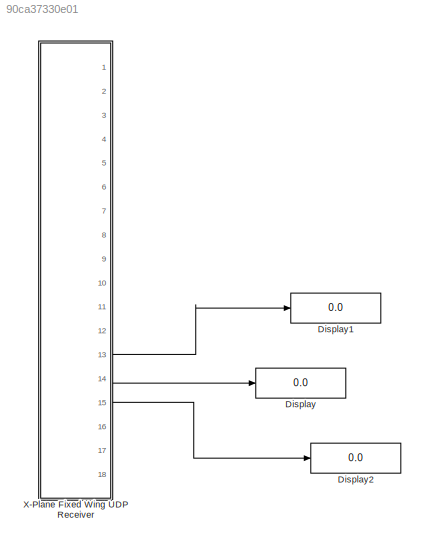
MODEL slx_90ca37330e01
KIND model
CONFIG AbsTol = auto
CONFIG EnableMultiTasking = off
CONFIG FixedStep = auto
CONFIG MaxStep = auto
CONFIG MinStep = auto
CONFIG RelTol = 1e-3
CONFIG SampleTimeConstraint = Unconstrained
CONFIG Solver = VariableStepAuto
CONFIG SolverName = VariableStepAuto
CONFIG StartTime = 0.0
CONFIG StopTime = inf
BLOCK [Display] Display
  Decimation = 1
  Ports = [1]
BLOCK [Display] Display1
  Decimation = 1
  Ports = [1]
BLOCK [Display] Display2
  Decimation = 1
  Ports = [1]
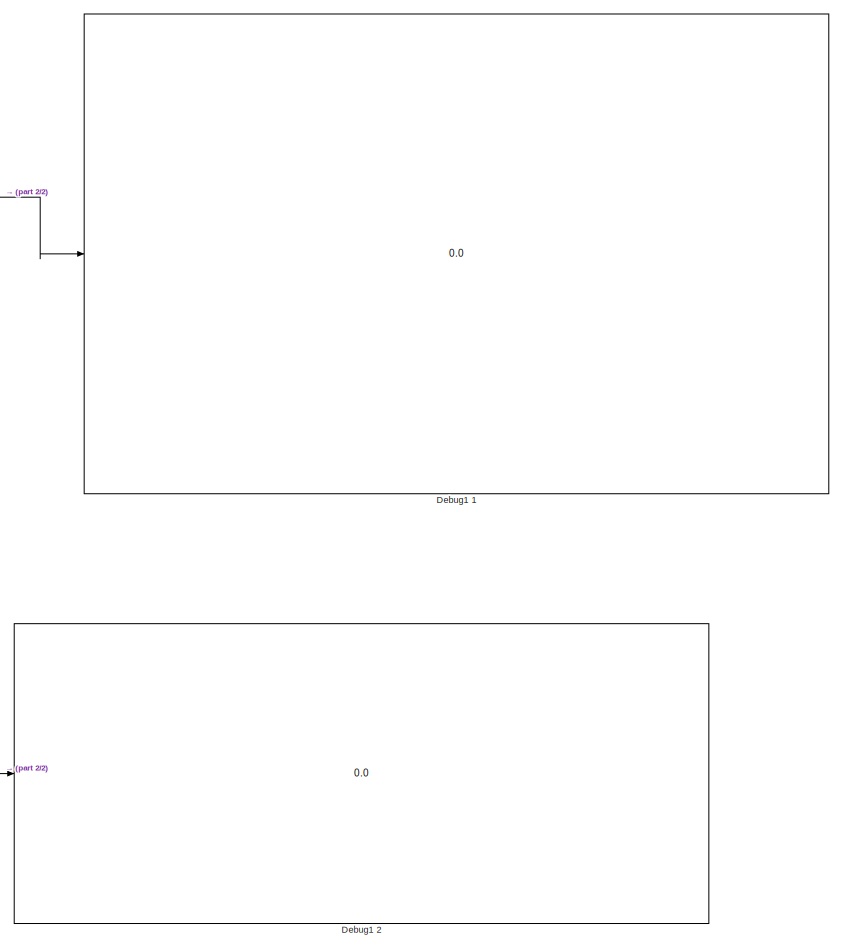
[diagram: X-Plane Fixed Wing UDP Receiver - part 1/2, right side, full height]
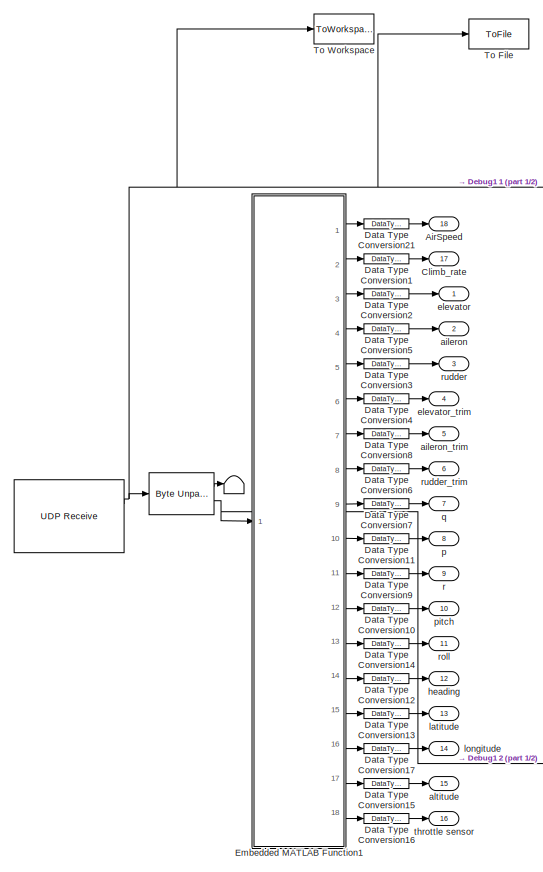
[diagram: X-Plane Fixed Wing UDP Receiver - part 2/2, left side, full height]
BLOCK [SubSystem] X-Plane Fixed Wing UDP Receiver
  AncestorBlock = X_Plane_Communication_Library/Fixed Wing/X-Plane Fixed Wing UDP Receiver
  Ports = [0, 18]
  RequestExecContextInheritance = off
  Variant = off
BLOCK [Terminator] X-Plane Fixed Wing UDP Receiver/ 
BLOCK [Reference] X-Plane Fixed Wing UDP Receiver/      REF=dspnetwork/UDP Receive
  Ports = [0, 2]
  SourceBlock = dspnetwork/UDP Receive
  SourceProductBaseCode = DS
  SourceProductName = DSP System Toolbox
  SourceType = UDP Receive
BLOCK [Reference] X-Plane Fixed Wing UDP Receiver/       REF=etargetslib/Byte Unpack
  Ports = [1, 2]
  SourceBlock = etargetslib/Byte Unpack
  SourceType = Byte Unpack
BLOCK [Outport] X-Plane Fixed Wing UDP Receiver/AirSpeed
  IconDisplay = Port number
  Port = 18
BLOCK [Outport] X-Plane Fixed Wing UDP Receiver/Climb_rate
  IconDisplay = Port number
  Port = 17
BLOCK [DataTypeConversion] X-Plane Fixed Wing UDP Receiver/Data Type Conversion1
  OutDataTypeStr = double
  RndMeth = Floor
BLOCK [DataTypeConversion] X-Plane Fixed Wing UDP Receiver/Data Type Conversion10
  OutDataTypeStr = double
  RndMeth = Floor
BLOCK [DataTypeConversion] X-Plane Fixed Wing UDP Receiver/Data Type Conversion11
  OutDataTypeStr = double
  RndMeth = Floor
BLOCK [DataTypeConversion] X-Plane Fixed Wing UDP Receiver/Data Type Conversion12
  OutDataTypeStr = double
  RndMeth = Floor
BLOCK [DataTypeConversion] X-Plane Fixed Wing UDP Receiver/Data Type Conversion13
  OutDataTypeStr = double
  RndMeth = Floor
BLOCK [DataTypeConversion] X-Plane Fixed Wing UDP Receiver/Data Type Conversion14
  OutDataTypeStr = double
  RndMeth = Floor
BLOCK [DataTypeConversion] X-Plane Fixed Wing UDP Receiver/Data Type Conversion15
  OutDataTypeStr = double
  RndMeth = Floor
BLOCK [DataTypeConversion] X-Plane Fixed Wing UDP Receiver/Data Type Conversion16
  OutDataTypeStr = double
  RndMeth = Floor
BLOCK [DataTypeConversion] X-Plane Fixed Wing UDP Receiver/Data Type Conversion17
  OutDataTypeStr = double
  RndMeth = Floor
BLOCK [DataTypeConversion] X-Plane Fixed Wing UDP Receiver/Data Type Conversion2
  OutDataTypeStr = double
  RndMeth = Floor
BLOCK [DataTypeConversion] X-Plane Fixed Wing UDP Receiver/Data Type Conversion21
  OutDataTypeStr = double
  RndMeth = Floor
BLOCK [DataTypeConversion] X-Plane Fixed Wing UDP Receiver/Data Type Conversion3
  OutDataTypeStr = double
  RndMeth = Floor
BLOCK [DataTypeConversion] X-Plane Fixed Wing UDP Receiver/Data Type Conversion4
  OutDataTypeStr = double
  RndMeth = Floor
BLOCK [DataTypeConversion] X-Plane Fixed Wing UDP Receiver/Data Type Conversion5
  OutDataTypeStr = double
  RndMeth = Floor
BLOCK [DataTypeConversion] X-Plane Fixed Wing UDP Receiver/Data Type Conversion6
  OutDataTypeStr = double
  RndMeth = Floor
BLOCK [DataTypeConversion] X-Plane Fixed Wing UDP Receiver/Data Type Conversion7
  OutDataTypeStr = double
  RndMeth = Floor
BLOCK [DataTypeConversion] X-Plane Fixed Wing UDP Receiver/Data Type Conversion8
  OutDataTypeStr = double
  RndMeth = Floor
BLOCK [DataTypeConversion] X-Plane Fixed Wing UDP Receiver/Data Type Conversion9
  OutDataTypeStr = double
  RndMeth = Floor
BLOCK [Display] X-Plane Fixed Wing UDP Receiver/Debug1 1
  Decimation = 1
  Ports = [1]
BLOCK [Display] X-Plane Fixed Wing UDP Receiver/Debug1 2
  Decimation = 1
  Ports = [1]
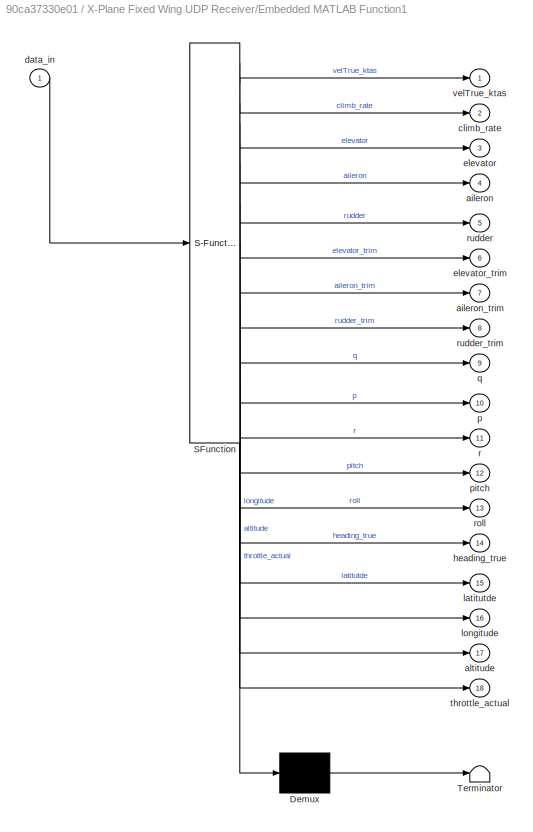
BLOCK [SubSystem] X-Plane Fixed Wing UDP Receiver/Embedded MATLAB Function1
  ErrorFcn = Stateflow.Translate.translate
  PermitHierarchicalResolution = ExplicitOnly
  Ports = [1, 18]
  RequestExecContextInheritance = off
  SFBlockType = MATLAB Function
  TreatAsAtomicUnit = on
  Variant = off
BLOCK [Demux] X-Plane Fixed Wing UDP Receiver/Embedded MATLAB Function1/ Demux 
  Outputs = 1
  Ports = [1, 1]
BLOCK [S-Function] X-Plane Fixed Wing UDP Receiver/Embedded MATLAB Function1/ SFunction 
  EnableBusSupport = on
  FunctionName = sf_sfun
  PortCounts = [1 19]
  Ports = [1, 19]
  SFcnIsStateOwnerBlock = off
  SFunctionDeploymentMode = off
  Tag = Stateflow S-Function testgood 1
BLOCK [Terminator] X-Plane Fixed Wing UDP Receiver/Embedded MATLAB Function1/ Terminator 
BLOCK [Outport] X-Plane Fixed Wing UDP Receiver/Embedded MATLAB Function1/aileron
  IconDisplay = Port number
  Port = 4
BLOCK [Outport] X-Plane Fixed Wing UDP Receiver/Embedded MATLAB Function1/aileron_trim
  IconDisplay = Port number
  Port = 7
BLOCK [Outport] X-Plane Fixed Wing UDP Receiver/Embedded MATLAB Function1/altitude
  IconDisplay = Port number
  Port = 17
BLOCK [Outport] X-Plane Fixed Wing UDP Receiver/Embedded MATLAB Function1/climb_rate
  IconDisplay = Port number
  Port = 2
BLOCK [Inport] X-Plane Fixed Wing UDP Receiver/Embedded MATLAB Function1/data_in
  IconDisplay = Port number
BLOCK [Outport] X-Plane Fixed Wing UDP Receiver/Embedded MATLAB Function1/elevator
  IconDisplay = Port number
  Port = 3
BLOCK [Outport] X-Plane Fixed Wing UDP Receiver/Embedded MATLAB Function1/elevator_trim
  IconDisplay = Port number
  Port = 6
BLOCK [Outport] X-Plane Fixed Wing UDP Receiver/Embedded MATLAB Function1/heading_true
  IconDisplay = Port number
  Port = 14
BLOCK [Outport] X-Plane Fixed Wing UDP Receiver/Embedded MATLAB Function1/latitutde
  IconDisplay = Port number
  Port = 15
BLOCK [Outport] X-Plane Fixed Wing UDP Receiver/Embedded MATLAB Function1/longitude
  IconDisplay = Port number
  Port = 16
BLOCK [Outport] X-Plane Fixed Wing UDP Receiver/Embedded MATLAB Function1/p
  IconDisplay = Port number
  Port = 10
BLOCK [Outport] X-Plane Fixed Wing UDP Receiver/Embedded MATLAB Function1/pitch
  IconDisplay = Port number
  Port = 12
BLOCK [Outport] X-Plane Fixed Wing UDP Receiver/Embedded MATLAB Function1/q
  IconDisplay = Port number
  Port = 9
BLOCK [Outport] X-Plane Fixed Wing UDP Receiver/Embedded MATLAB Function1/r
  IconDisplay = Port number
  Port = 11
BLOCK [Outport] X-Plane Fixed Wing UDP Receiver/Embedded MATLAB Function1/roll
  IconDisplay = Port number
  Port = 13
BLOCK [Outport] X-Plane Fixed Wing UDP Receiver/Embedded MATLAB Function1/rudder
  IconDisplay = Port number
  Port = 5
BLOCK [Outport] X-Plane Fixed Wing UDP Receiver/Embedded MATLAB Function1/rudder_trim
  IconDisplay = Port number
  Port = 8
BLOCK [Outport] X-Plane Fixed Wing UDP Receiver/Embedded MATLAB Function1/throttle_actual
  IconDisplay = Port number
  Port = 18
BLOCK [Outport] X-Plane Fixed Wing UDP Receiver/Embedded MATLAB Function1/velTrue_ktas
  IconDisplay = Port number
BLOCK [ToFile] X-Plane Fixed Wing UDP Receiver/To File
  Ports = [1]
  SaveFormat = Timeseries
BLOCK [ToWorkspace] X-Plane Fixed Wing UDP Receiver/To Workspace
  FixptAsFi = on
  MaxDataPoints = inf
  Ports = [1]
  SampleTime = -1
  Save2DSignal = 3-D array (concatenate along third dimension)
  SaveFormat = Timeseries
  VariableName = simout
BLOCK [Outport] X-Plane Fixed Wing UDP Receiver/aileron
  IconDisplay = Port number
  Port = 2
BLOCK [Outport] X-Plane Fixed Wing UDP Receiver/aileron_trim
  IconDisplay = Port number
  Port = 5
BLOCK [Outport] X-Plane Fixed Wing UDP Receiver/altitude
  IconDisplay = Port number
  Port = 15
BLOCK [Outport] X-Plane Fixed Wing UDP Receiver/elevator 
  IconDisplay = Port number
BLOCK [Outport] X-Plane Fixed Wing UDP Receiver/elevator_trim
  IconDisplay = Port number
  Port = 4
BLOCK [Outport] X-Plane Fixed Wing UDP Receiver/heading
  IconDisplay = Port number
  Port = 12
BLOCK [Outport] X-Plane Fixed Wing UDP Receiver/latitude
  IconDisplay = Port number
  Port = 13
BLOCK [Outport] X-Plane Fixed Wing UDP Receiver/longitude
  IconDisplay = Port number
  Port = 14
BLOCK [Outport] X-Plane Fixed Wing UDP Receiver/p
  IconDisplay = Port number
  Port = 8
BLOCK [Outport] X-Plane Fixed Wing UDP Receiver/pitch
  IconDisplay = Port number
  Port = 10
BLOCK [Outport] X-Plane Fixed Wing UDP Receiver/q
  IconDisplay = Port number
  Port = 7
BLOCK [Outport] X-Plane Fixed Wing UDP Receiver/r
  IconDisplay = Port number
  Port = 9
BLOCK [Outport] X-Plane Fixed Wing UDP Receiver/roll
  IconDisplay = Port number
  Port = 11
BLOCK [Outport] X-Plane Fixed Wing UDP Receiver/rudder
  IconDisplay = Port number
  Port = 3
BLOCK [Outport] X-Plane Fixed Wing UDP Receiver/rudder_trim
  IconDisplay = Port number
  Port = 6
BLOCK [Outport] X-Plane Fixed Wing UDP Receiver/throttle sensor
  IconDisplay = Port number
  Port = 16
LINE X-Plane Fixed Wing UDP Receiver:13 -> Display1:1
LINE X-Plane Fixed Wing UDP Receiver:14 -> Display:1
LINE X-Plane Fixed Wing UDP Receiver:15 -> Display2:1
CHART X-Plane Fixed Wing UDP Receiver/Embedded
MATLAB Function1 states=1 transitions=1
  STATE_LABEL 'eML_blk_kernel()'
  STATE_LABEL 'SCRIPT:\nfunction [velTrue_ktas, climb_rate,elevator, aileron, rudder, elevator_trim, aileron_trim, rudder_trim, q,p,r, pitch, roll, heading_true, latitutde, longitude, altitude, throttle_actual]   = fcn(data_in)\n% This block supports the Embedded MATLAB subset.\n% See the help menu for details. \n\n\nvelTrue_ktas = data_in(4,1);\n\nclimb_rate = data_in(4,2);\n\nelevator = data_in(2,3);\naileron = data_in(3...<+348ch>'
